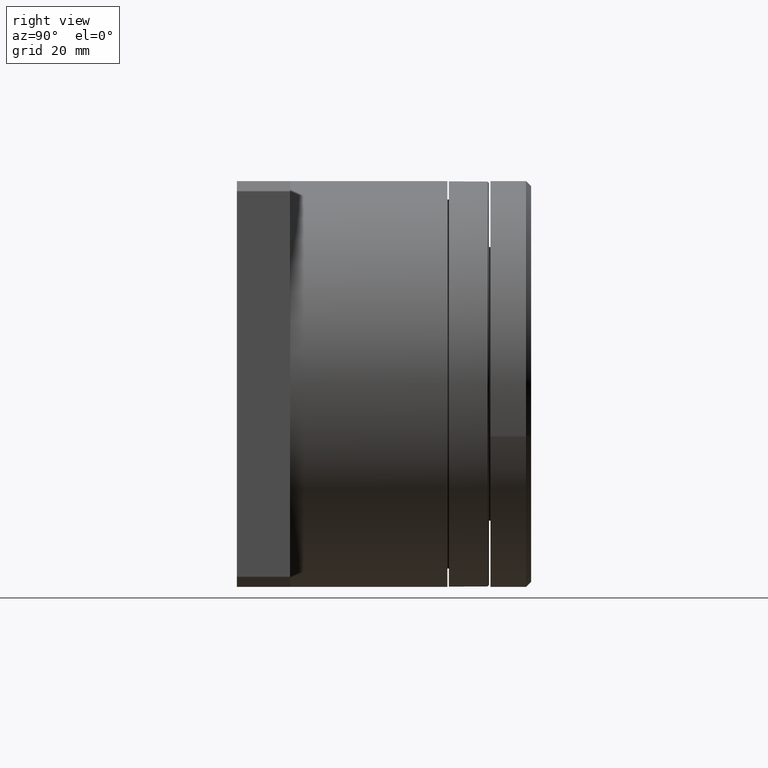
[diagram: clean part render]
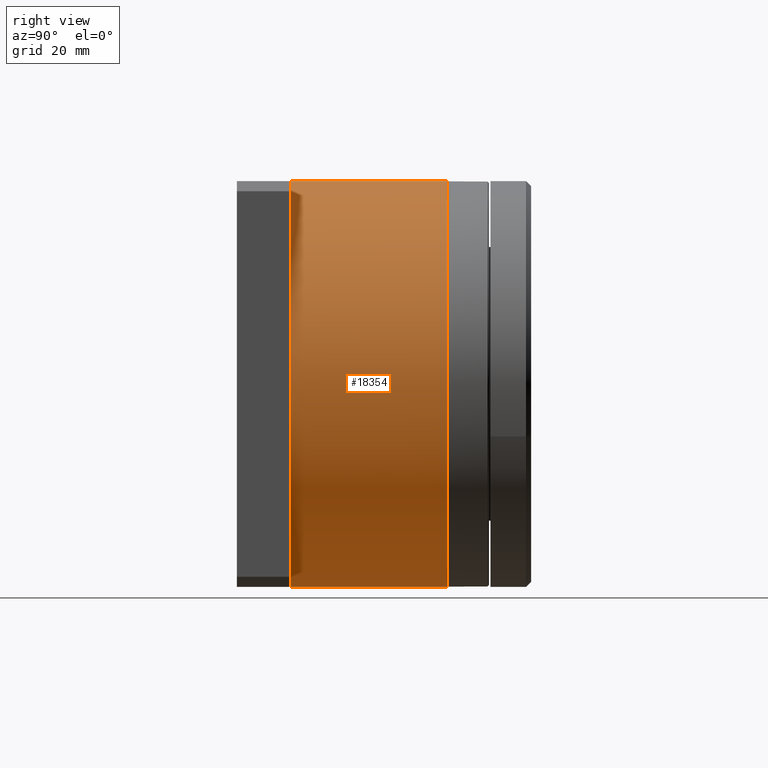
[diagram: same view with one face highlighted and labeled with its STEP entity id]
A machine part, right view. The second image highlights one B-rep face of the part: STEP entity #18354.
In plain terms, the highlighted cylindrical surface (partial cylindrical patch) has radius 40 mm, axis along (0, -1, 0).
Its self-contained STEP definition (entity closure, byte-faithful):
#719 = DIRECTION ( 'NONE',  ( 2.465190328815661900E-032, -1.000000000000000000, 3.421138828918010400E-048 ) ) ;
#1747 = CARTESIAN_POINT ( 'NONE',  ( 39.99999999999999300, 41.50000000000000000, 1.387778780781445700E-014 ) ) ;
#3455 = DIRECTION ( 'NONE',  ( 2.465190328815661900E-032, -1.000000000000000000, 3.421138828918010400E-048 ) ) ;
#3558 = ORIENTED_EDGE ( 'NONE', *, *, #13328, .F. ) ;
#4768 = EDGE_CURVE ( 'NONE', #10546, #14880, #12260, .T. ) ;
#5016 = CARTESIAN_POINT ( 'NONE',  ( 39.99999999999999300, 41.50000000000000000, 80.00000000000001400 ) ) ;
#5178 = DIRECTION ( 'NONE',  ( 2.465190328815661900E-032, -1.000000000000000000, 3.421138828918010400E-048 ) ) ;
#5456 = ORIENTED_EDGE ( 'NONE', *, *, #14417, .T. ) ;
#5515 = CARTESIAN_POINT ( 'NONE',  ( 39.99999999999999300, 41.50000000000000000, 40.00000000000001400 ) ) ;
#5721 = CIRCLE ( 'NONE', #19283, 40.00000000000000000 ) ;
#6044 = CARTESIAN_POINT ( 'NONE',  ( 79.99999999999998600, 10.50000000000000000, 40.00000000000001400 ) ) ;
#6454 = EDGE_LOOP ( 'NONE', ( #19278, #23089, #24625, #5456, #3558 ) ) ;
#6756 = CIRCLE ( 'NONE', #15026, 40.00000000000000000 ) ;
#7382 = DIRECTION ( 'NONE',  ( 0.0000000000000000000, 0.0000000000000000000, -1.000000000000000000 ) ) ;
#7938 = CARTESIAN_POINT ( 'NONE',  ( 39.99999999999999300, 41.50000000000000000, 80.00000000000001400 ) ) ;
#8088 = EDGE_CURVE ( 'NONE', #14880, #11625, #6756, .T. ) ;
#8755 = LINE ( 'NONE', #10544, #17765 ) ;
#8995 = CARTESIAN_POINT ( 'NONE',  ( 39.99999999999999300, 10.50000000000000000, 40.00000000000001400 ) ) ;
#9178 = VECTOR ( 'NONE', #19749, 1000.000000000000000 ) ;
#9724 = CARTESIAN_POINT ( 'NONE',  ( 40.00000000000000000, 10.50000000000000000, 6.938893903907228400E-015 ) ) ;
#10544 = CARTESIAN_POINT ( 'NONE',  ( 39.99999999999999300, 41.50000000000000000, 1.387778780781445700E-014 ) ) ;
#10546 = VERTEX_POINT ( 'NONE', #5016 ) ;
#11336 = CARTESIAN_POINT ( 'NONE',  ( 39.99999999999999300, 10.50000000000000000, 40.00000000000001400 ) ) ;
#11389 = AXIS2_PLACEMENT_3D ( 'NONE', #5515, #5178, #7382 ) ;
#11625 = VERTEX_POINT ( 'NONE', #6044 ) ;
#12260 = LINE ( 'NONE', #7938, #9178 ) ;
#13257 = CYLINDRICAL_SURFACE ( 'NONE', #18498, 40.00000000000000000 ) ;
#13328 = EDGE_CURVE ( 'NONE', #23523, #24060, #8755, .T. ) ;
#13376 = CARTESIAN_POINT ( 'NONE',  ( 39.99999999999999300, 41.50000000000000000, 40.00000000000001400 ) ) ;
#13431 = DIRECTION ( 'NONE',  ( -8.673617379884035500E-016, 0.0000000000000000000, -1.000000000000000000 ) ) ;
#13516 = DIRECTION ( 'NONE',  ( -2.465190328815661900E-032, 1.000000000000000000, -3.421138828918010400E-048 ) ) ;
#13582 = CARTESIAN_POINT ( 'NONE',  ( 39.99999999999999300, 10.50000000000000000, 80.00000000000001400 ) ) ;
#14417 = EDGE_CURVE ( 'NONE', #11625, #24060, #5721, .T. ) ;
#14880 = VERTEX_POINT ( 'NONE', #13582 ) ;
#15026 = AXIS2_PLACEMENT_3D ( 'NONE', #8995, #17159, #21172 ) ;
#17159 = DIRECTION ( 'NONE',  ( -2.465190328815661900E-032, 1.000000000000000000, -3.421138828918010400E-048 ) ) ;
#17765 = VECTOR ( 'NONE', #719, 1000.000000000000000 ) ;
#18354 = ADVANCED_FACE ( 'NONE', ( #21059 ), #13257, .T. ) ;
#18498 = AXIS2_PLACEMENT_3D ( 'NONE', #13376, #3455, #25120 ) ;
#19278 = ORIENTED_EDGE ( 'NONE', *, *, #20393, .T. ) ;
#19283 = AXIS2_PLACEMENT_3D ( 'NONE', #11336, #13516, #13431 ) ;
#19749 = DIRECTION ( 'NONE',  ( 2.465190328815661900E-032, -1.000000000000000000, 3.421138828918010400E-048 ) ) ;
#20393 = EDGE_CURVE ( 'NONE', #23523, #10546, #24532, .T. ) ;
#21059 = FACE_OUTER_BOUND ( 'NONE', #6454, .T. ) ;
#21172 = DIRECTION ( 'NONE',  ( 0.0000000000000000000, 0.0000000000000000000, -1.000000000000000000 ) ) ;
#23089 = ORIENTED_EDGE ( 'NONE', *, *, #4768, .T. ) ;
#23523 = VERTEX_POINT ( 'NONE', #1747 ) ;
#24060 = VERTEX_POINT ( 'NONE', #9724 ) ;
#24532 = CIRCLE ( 'NONE', #11389, 40.00000000000000000 ) ;
#24625 = ORIENTED_EDGE ( 'NONE', *, *, #8088, .T. ) ;
#25120 = DIRECTION ( 'NONE',  ( 0.0000000000000000000, 0.0000000000000000000, -1.000000000000000000 ) ) ;